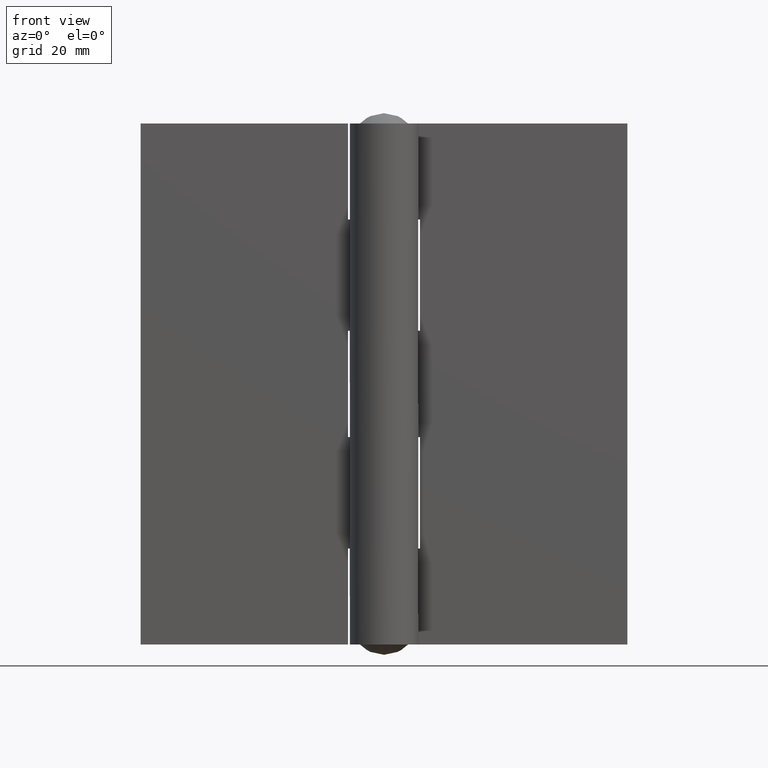
[diagram: clean part render]
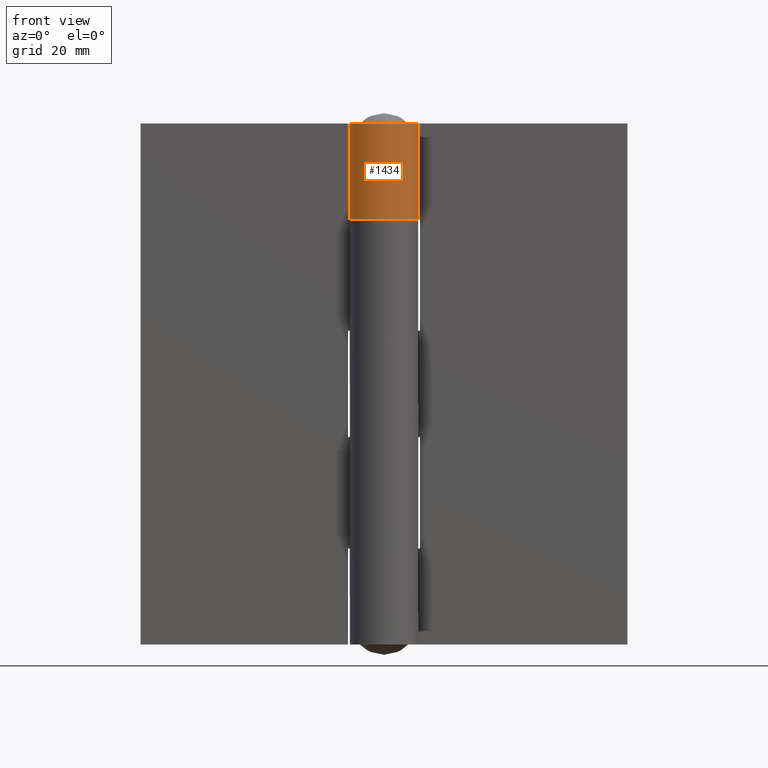
[diagram: same view with one face highlighted and labeled with its STEP entity id]
A machine part, front view. The second image highlights one B-rep face of the part: STEP entity #1434.
In plain terms, the highlighted face is a freeform B-spline surface patch.
Its self-contained STEP definition (entity closure, byte-faithful):
#1048=CARTESIAN_POINT('',(8.037256994771289,5.950000000000000,123.999985000000000));
#1049=VERTEX_POINT('',#1048);
#1050=CARTESIAN_POINT('',(0.0,10.0,123.999985000000000));
#1051=VERTEX_POINT('',#1050);
#1052=CARTESIAN_POINT('',(8.037256994771289,5.949999999999998,123.999985000000000));
#1053=CARTESIAN_POINT('',(12.738658276234162,-0.400650476414151,123.999985000000000));
#1054=CARTESIAN_POINT('',(7.647468291680491,-6.443308833801269,123.999985000000000));
#1055=CARTESIAN_POINT('',(2.556278307126820,-12.485967191188388,123.999985000000000));
#1056=CARTESIAN_POINT('',(-4.500000000000006,-8.930285549745872,123.999985000000000));
#1057=CARTESIAN_POINT('',(-11.556278307126822,-5.374603908303364,123.999985000000000));
#1058=CARTESIAN_POINT('',(-9.728896532943981,2.312698045848309,123.999985000000000));
#1059=CARTESIAN_POINT('',(-7.901514758761137,9.999999999999998,123.999985000000000));
#1060=CARTESIAN_POINT('',(0.0,10.0,123.999985000000000));
#1068=(BOUNDED_CURVE()B_SPLINE_CURVE(2,(#1052,#1053,#1054,#1055,#1056,#1057,#1058,#1059,#1060),.UNSPECIFIED.,.F.,.U.)B_SPLINE_CURVE_WITH_KNOTS((3,2,2,2,3),(0.0,0.250000000000000,0.500000000000000,0.750000000000000,1.0),.UNSPECIFIED.)CURVE()GEOMETRIC_REPRESENTATION_ITEM()RATIONAL_B_SPLINE_CURVE((1.0,0.784624051563815,1.0,0.784624051563815,1.0,0.784624051563815,1.0,0.784624051563815,1.0))REPRESENTATION_ITEM(''));
#1069=EDGE_CURVE('',#1049,#1051,#1068,.T.);
#1196=CARTESIAN_POINT('',(8.037256994771289,5.950000000000000,151.999985000000010));
#1197=VERTEX_POINT('',#1196);
#1198=CARTESIAN_POINT('',(0.0,10.0,151.999985000000010));
#1199=VERTEX_POINT('',#1198);
#1200=CARTESIAN_POINT('',(8.037256994771289,5.949999999999998,151.999985000000010));
#1201=CARTESIAN_POINT('',(12.738658276234162,-0.400650476414151,151.999985000000070));
#1202=CARTESIAN_POINT('',(7.647468291680491,-6.443308833801269,151.999985000000010));
#1203=CARTESIAN_POINT('',(2.556278307126820,-12.485967191188388,151.999985000000070));
#1204=CARTESIAN_POINT('',(-4.500000000000006,-8.930285549745872,151.999985000000010));
#1205=CARTESIAN_POINT('',(-11.556278307126822,-5.374603908303364,151.999985000000070));
#1206=CARTESIAN_POINT('',(-9.728896532943981,2.312698045848309,151.999985000000010));
#1207=CARTESIAN_POINT('',(-7.901514758761137,9.999999999999998,151.999985000000070));
#1208=CARTESIAN_POINT('',(0.0,10.0,151.999985000000010));
#1216=(BOUNDED_CURVE()B_SPLINE_CURVE(2,(#1200,#1201,#1202,#1203,#1204,#1205,#1206,#1207,#1208),.UNSPECIFIED.,.F.,.U.)B_SPLINE_CURVE_WITH_KNOTS((3,2,2,2,3),(0.0,0.250000000000000,0.500000000000000,0.750000000000000,1.0),.UNSPECIFIED.)CURVE()GEOMETRIC_REPRESENTATION_ITEM()RATIONAL_B_SPLINE_CURVE((1.0,0.784624051563815,1.0,0.784624051563815,1.0,0.784624051563815,1.0,0.784624051563815,1.0))REPRESENTATION_ITEM(''));
#1217=EDGE_CURVE('',#1197,#1199,#1216,.T.);
#1386=CARTESIAN_POINT('',(0.0,10.0,151.999985000000010));
#1387=CARTESIAN_POINT('',(0.0,10.0,123.999985000000000));
#1388=QUASI_UNIFORM_CURVE('',1,(#1386,#1387),.UNSPECIFIED.,.F.,.U.);
#1389=EDGE_CURVE('',#1199,#1051,#1388,.T.);
#1402=CARTESIAN_POINT('',(0.346791584391351,9.993984970820963,152.699985000000000));
#1403=CARTESIAN_POINT('',(0.346791584391351,9.993984970820963,123.282484999999990));
#1404=CARTESIAN_POINT('',(-12.521910133312209,10.440529314320763,152.699985000000030));
#1405=CARTESIAN_POINT('',(-12.521910133312209,10.440529314320763,123.282484999999980));
#1406=CARTESIAN_POINT('',(-9.768743568082419,-2.138141506319986,152.699985000000000));
#1407=CARTESIAN_POINT('',(-9.768743568082419,-2.138141506319986,123.282484999999990));
#1408=CARTESIAN_POINT('',(-7.015577002852631,-14.716812326960735,152.699985000000030));
#1409=CARTESIAN_POINT('',(-7.015577002852631,-14.716812326960735,123.282484999999980));
#1410=CARTESIAN_POINT('',(4.489961900186806,-8.935336710772058,152.699985000000000));
#1411=CARTESIAN_POINT('',(4.489961900186806,-8.935336710772058,123.282484999999990));
#1412=CARTESIAN_POINT('',(15.995500803226243,-3.153861094583382,152.699985000000030));
#1413=CARTESIAN_POINT('',(15.995500803226243,-3.153861094583382,123.282484999999980));
#1414=CARTESIAN_POINT('',(7.545649194174652,6.562254051654151,152.699985000000000));
#1415=CARTESIAN_POINT('',(7.545649194174652,6.562254051654151,123.282484999999990));
#1423=(BOUNDED_SURFACE()B_SPLINE_SURFACE(1,2,((#1402,#1404,#1406,#1408,#1410,#1412,#1414),(#1403,#1405,#1407,#1409,#1411,#1413,#1415)),.UNSPECIFIED.,.F.,.F.,.U.)B_SPLINE_SURFACE_WITH_KNOTS((2,2),(3,2,2,3),(0.0,29.417500000000050),(0.0,19.581371835351231,39.162743670702469,58.744115506053703),.UNSPECIFIED.)GEOMETRIC_REPRESENTATION_ITEM()RATIONAL_B_SPLINE_SURFACE(((1.0,0.613366643455859,1.0,0.613366643455859,1.0,0.613366643455859,1.0),(1.0,0.613366643455859,1.0,0.613366643455859,1.0,0.613366643455859,1.0)))REPRESENTATION_ITEM('')SURFACE());
#1424=ORIENTED_EDGE('',*,*,#1069,.F.);
#1425=CARTESIAN_POINT('',(8.037256994771289,5.950000000000000,151.999985000000010));
#1426=CARTESIAN_POINT('',(8.037256994771289,5.950000000000000,123.999985000000000));
#1427=QUASI_UNIFORM_CURVE('',1,(#1425,#1426),.UNSPECIFIED.,.F.,.U.);
#1428=EDGE_CURVE('',#1197,#1049,#1427,.T.);
#1429=ORIENTED_EDGE('',*,*,#1428,.F.);
#1430=ORIENTED_EDGE('',*,*,#1217,.T.);
#1431=ORIENTED_EDGE('',*,*,#1389,.T.);
#1432=EDGE_LOOP('',(#1424,#1429,#1430,#1431));
#1433=FACE_OUTER_BOUND('',#1432,.T.);
#1434=ADVANCED_FACE('',(#1433),#1423,.T.);